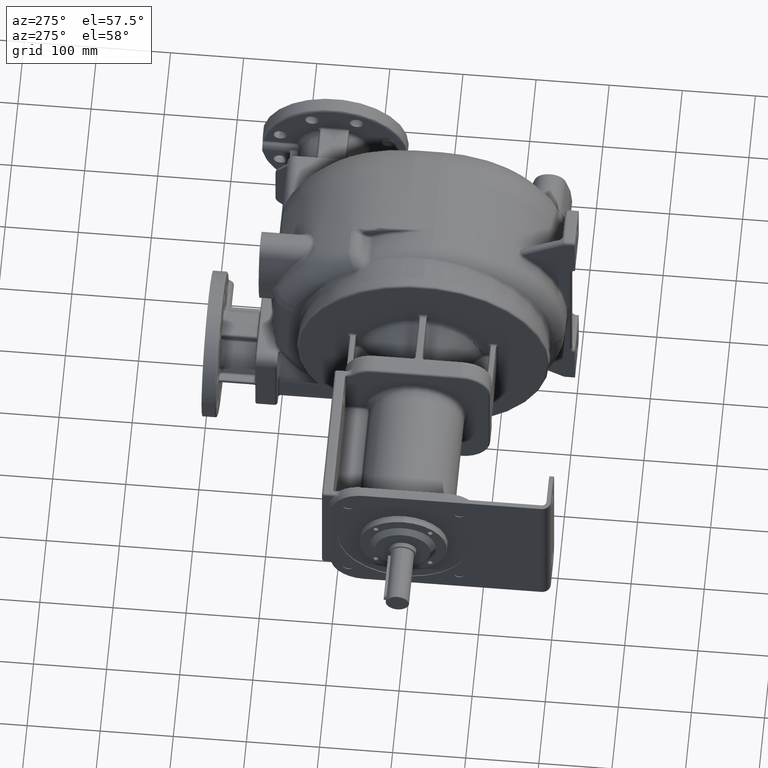
[diagram: clean part render]
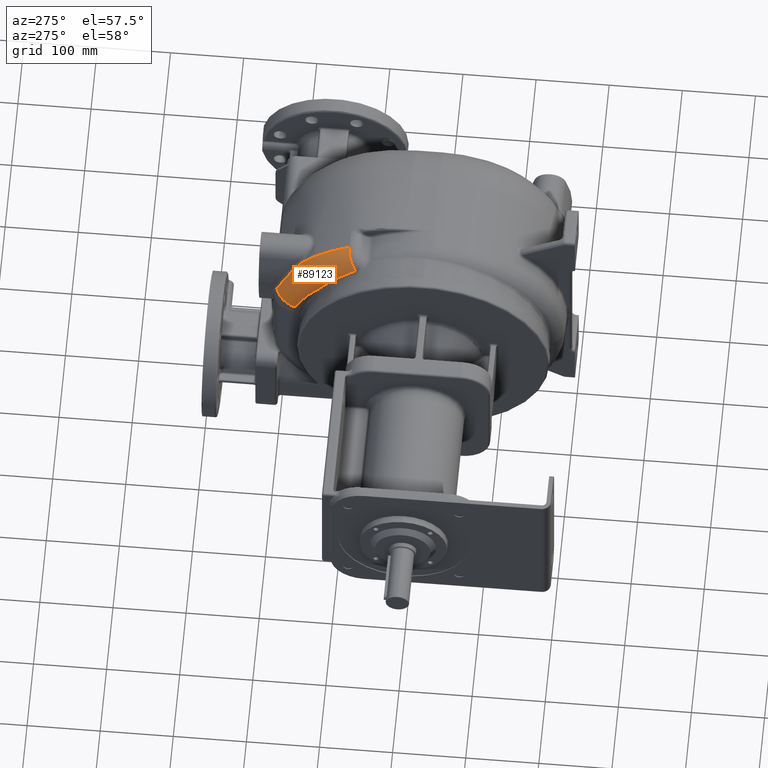
[diagram: same view with one face highlighted and labeled with its STEP entity id]
A machine part, auxiliary view. The second image highlights one B-rep face of the part: STEP entity #89123.
In plain terms, the highlighted toroidal blend (fillet) surface has major radius 159 mm and minor (blend) radius 30 mm.
Its self-contained STEP definition (entity closure, byte-faithful):
#5844=CARTESIAN_POINT('',(-9.E1,2.3E2,-1.4E1));
#5845=DIRECTION('',(1.E0,0.E0,0.E0));
#5846=DIRECTION('',(0.E0,9.302325581395E-1,3.669705543735E-1));
#5847=AXIS2_PLACEMENT_3D('',#5844,#5845,#5846);
#27433=CARTESIAN_POINT('',(-6.000000000030E1,3.064739922871E2,
1.588372994995E2));
#27553=CARTESIAN_POINT('',(-6.E1,2.3E2,-1.4E1));
#27554=DIRECTION('',(1.E0,0.E0,0.E0));
#27555=DIRECTION('',(0.E0,7.543088288629E-1,6.565197565188E-1));
#27556=AXIS2_PLACEMENT_3D('',#27553,#27554,#27555);
#27647=CARTESIAN_POINT('',(-6.000000000092E1,3.725643686570E2,
1.100822339799E2));
#27691=CARTESIAN_POINT('',(-8.762180806641E1,2.953950263797E2,
1.436835588430E2));
#27692=CARTESIAN_POINT('',(-8.769521069200E1,2.962566815015E2,
1.431386986206E2));
#27693=CARTESIAN_POINT('',(-8.783826740654E1,2.979707382224E2,
1.420334029943E2));
#27694=CARTESIAN_POINT('',(-8.804165784052E1,3.005132172466E2,
1.403293636467E2));
#27695=CARTESIAN_POINT('',(-8.823403341978E1,3.030261253060E2,
1.385797783569E2));
#27696=CARTESIAN_POINT('',(-8.841553721379E1,3.055085425872E2,
1.367852388306E2));
#27697=CARTESIAN_POINT('',(-8.858632965187E1,3.079595436378E2,
1.349463243219E2));
#27698=CARTESIAN_POINT('',(-8.874657425831E1,3.103781782659E2,
1.330636248693E2));
#27699=CARTESIAN_POINT('',(-8.889643116003E1,3.127636010498E2,
1.311376977988E2));
#27700=CARTESIAN_POINT('',(-8.903604457782E1,3.151152268230E2,
1.291690188950E2));
#27701=CARTESIAN_POINT('',(-8.916556542760E1,3.174324486465E2,
1.271580417057E2));
#27702=CARTESIAN_POINT('',(-8.928513878391E1,3.197145376129E2,
1.251053155930E2));
#27703=CARTESIAN_POINT('',(-8.939490426663E1,3.219605928680E2,
1.230115515701E2));
#27704=CARTESIAN_POINT('',(-8.949500969855E1,3.241697463077E2,
1.208774314408E2));
#27705=CARTESIAN_POINT('',(-8.958559527435E1,3.263411675304E2,
1.187036924313E2));
#27706=CARTESIAN_POINT('',(-8.966680054861E1,3.284740785590E2,
1.164910967877E2));
#27707=CARTESIAN_POINT('',(-8.973877270596E1,3.305676710447E2,
1.142404416515E2));
#27708=CARTESIAN_POINT('',(-8.980166984260E1,3.326213256288E2,
1.119523322082E2));
#27709=CARTESIAN_POINT('',(-8.985565365644E1,3.346344925975E2,
1.096272835849E2));
#27710=CARTESIAN_POINT('',(-8.990088632323E1,3.366066030567E2,
1.072657865778E2));
#27711=CARTESIAN_POINT('',(-8.993751777536E1,3.385369797466E2,
1.048686205661E2));
#27712=CARTESIAN_POINT('',(-8.996570499920E1,3.404249204609E2,
1.024366380478E2));
#27713=CARTESIAN_POINT('',(-8.998561386675E1,3.422697285616E2,
9.997067522997E1));
#27714=CARTESIAN_POINT('',(-8.999741737241E1,3.440707123145E2,
9.747156284861E1));
#27715=CARTESIAN_POINT('',(-8.999999933684E1,3.452416721930E2,
9.578396717172E1));
#27716=CARTESIAN_POINT('',(-9.E1,3.458196245508E2,9.493490978708E1));
#27718=CARTESIAN_POINT('',(-6.848899719603E1,3.985561303529E2,
6.875183301023E1));
#27719=CARTESIAN_POINT('',(-6.853901747705E1,3.989144509852E2,
6.798848855057E1));
#27720=CARTESIAN_POINT('',(-6.862805762042E1,3.996237838311E2,
6.645765986517E1));
#27721=CARTESIAN_POINT('',(-6.872825286512E1,4.006672378904E2,
6.414714727711E1));
#27722=CARTESIAN_POINT('',(-6.879437732745E1,4.016876764182E2,
6.182892305847E1));
#27723=CARTESIAN_POINT('',(-6.882617210173E1,4.026837039949E2,
5.950739165666E1));
#27724=CARTESIAN_POINT('',(-6.882354118378E1,4.036539467758E2,
5.718696504237E1));
#27725=CARTESIAN_POINT('',(-6.879901281948E1,4.042820973670E2,
5.564519128781E1));
#27726=CARTESIAN_POINT('',(-6.878109941011E1,4.045917202806E2,
5.487527190917E1));
#27728=CARTESIAN_POINT('',(-6.020937188435E1,3.730639181206E2,
1.095048143138E2));
#27729=CARTESIAN_POINT('',(-6.042734916796E1,3.735997205387E2,
1.088818299071E2));
#27730=CARTESIAN_POINT('',(-6.085961046254E1,3.746642093944E2,
1.076204649236E2));
#27731=CARTESIAN_POINT('',(-6.149505794326E1,3.762389293209E2,
1.056829750444E2));
#27732=CARTESIAN_POINT('',(-6.211606699730E1,3.777921258422E2,
1.036995232177E2));
#27733=CARTESIAN_POINT('',(-6.272098238917E1,3.793240553163E2,
1.016699286046E2));
#27734=CARTESIAN_POINT('',(-6.330822962464E1,3.808351104644E2,
9.959390064618E1));
#27735=CARTESIAN_POINT('',(-6.387613882432E1,3.823257794372E2,
9.747107533414E1));
#27736=CARTESIAN_POINT('',(-6.442290540256E1,3.837962026039E2,
9.530164394303E1));
#27737=CARTESIAN_POINT('',(-6.494663212439E1,3.852462042773E2,
9.308639423132E1));
#27738=CARTESIAN_POINT('',(-6.544537233829E1,3.866758139338E2,
9.082599760732E1));
#27739=CARTESIAN_POINT('',(-6.591720210572E1,3.880849494411E2,
8.852142501326E1));
#27740=CARTESIAN_POINT('',(-6.636024652314E1,3.894734062730E2,
8.617397881651E1));
#27741=CARTESIAN_POINT('',(-6.677260646944E1,3.908412067587E2,
8.378476127157E1));
#27742=CARTESIAN_POINT('',(-6.715230403044E1,3.921879834979E2,
8.135565686831E1));
#27743=CARTESIAN_POINT('',(-6.749729952928E1,3.935122068216E2,
7.889082664839E1));
#27744=CARTESIAN_POINT('',(-6.780571960205E1,3.948127086088E2,
7.639416437454E1));
#27745=CARTESIAN_POINT('',(-6.807582471839E1,3.960883283461E2,
7.386984603646E1));
#27746=CARTESIAN_POINT('',(-6.830631890247E1,3.973381439200E2,
7.132162337576E1));
#27747=CARTESIAN_POINT('',(-6.843272308295E1,3.981530183961E2,
6.961059712931E1));
#27748=CARTESIAN_POINT('',(-6.848899719603E1,3.985561303529E2,
6.875183301023E1));
#27750=CARTESIAN_POINT('',(-6.000000000092E1,3.725643686570E2,
1.100822339799E2));
#27751=CARTESIAN_POINT('',(-6.002395814809E1,3.726199111368E2,
1.100184184092E2));
#27752=CARTESIAN_POINT('',(-6.007141267335E1,3.727309695723E2,
1.098905572811E2));
#27753=CARTESIAN_POINT('',(-6.014120843348E1,3.728974910281E2,
1.096980723139E2));
#27754=CARTESIAN_POINT('',(-6.018680623015E1,3.730084501541E2,
1.095693075915E2));
#27755=CARTESIAN_POINT('',(-6.020937188435E1,3.730639181206E2,
1.095048143138E2));
#27757=CARTESIAN_POINT('',(-8.762180806641E1,2.953950263797E2,
1.436835588430E2));
#27758=CARTESIAN_POINT('',(-8.751501008340E1,2.955713421834E2,
1.438832507602E2));
#27759=CARTESIAN_POINT('',(-8.729445560558E1,2.959196061576E2,
1.442812803659E2));
#27760=CARTESIAN_POINT('',(-8.694325449924E1,2.964300201248E2,
1.448726220751E2));
#27761=CARTESIAN_POINT('',(-8.657169300084E1,2.969272672941E2,
1.454587633778E2));
#27762=CARTESIAN_POINT('',(-8.618020525827E1,2.974126335209E2,
1.460382417817E2));
#27763=CARTESIAN_POINT('',(-8.576883538819E1,2.978848520616E2,
1.466114993330E2));
#27764=CARTESIAN_POINT('',(-8.533800237094E1,2.983450947248E2,
1.471772267439E2));
#27765=CARTESIAN_POINT('',(-8.488781123121E1,2.987923615065E2,
1.477356321969E2));
#27766=CARTESIAN_POINT('',(-8.441864109036E1,2.992274130725E2,
1.482857080357E2));
#27767=CARTESIAN_POINT('',(-8.393068981925E1,2.996496951806E2,
1.488273276210E2));
#27768=CARTESIAN_POINT('',(-8.342427496082E1,3.000594916752E2,
1.493598262562E2));
#27769=CARTESIAN_POINT('',(-8.289966984166E1,3.004567173673E2,
1.498827814144E2));
#27770=CARTESIAN_POINT('',(-8.235716720702E1,3.008412312495E2,
1.503957752102E2));
#27771=CARTESIAN_POINT('',(-8.179710864598E1,3.012132655837E2,
1.508981851285E2));
#27772=CARTESIAN_POINT('',(-8.121978976427E1,3.015724735627E2,
1.513897074653E2));
#27773=CARTESIAN_POINT('',(-8.062558554533E1,3.019191839819E2,
1.518696706204E2));
#27774=CARTESIAN_POINT('',(-8.001483063513E1,3.022530443504E2,
1.523377593075E2));
#27775=CARTESIAN_POINT('',(-7.938792696931E1,3.025743217962E2,
1.527933367185E2));
#27776=CARTESIAN_POINT('',(-7.874526712255E1,3.028827622707E2,
1.532360224827E2));
#27777=CARTESIAN_POINT('',(-7.808728824604E1,3.031785172557E2,
1.536652393903E2));
#27778=CARTESIAN_POINT('',(-7.741442492827E1,3.034614581182E2,
1.540805566870E2));
#27779=CARTESIAN_POINT('',(-7.672714362187E1,3.037316424552E2,
1.544814578477E2));
#27780=CARTESIAN_POINT('',(-7.602590820891E1,3.039890374262E2,
1.548674894919E2));
#27781=CARTESIAN_POINT('',(-7.531121542888E1,3.042336491251E2,
1.552381784182E2));
#27782=CARTESIAN_POINT('',(-7.458358598402E1,3.044654848597E2,
1.555930581245E2));
#27783=CARTESIAN_POINT('',(-7.384357825842E1,3.046845345954E2,
1.559316716917E2));
#27784=CARTESIAN_POINT('',(-7.309175920936E1,3.048908171945E2,
1.562535714297E2));
#27785=CARTESIAN_POINT('',(-7.232873801772E1,3.050843346337E2,
1.565583217200E2));
#27786=CARTESIAN_POINT('',(-7.155512719502E1,3.052651039480E2,
1.568455080891E2));
#27787=CARTESIAN_POINT('',(-7.077157890034E1,3.054331565399E2,
1.571147205282E2));
#27788=CARTESIAN_POINT('',(-6.997873920759E1,3.055885035418E2,
1.573655913680E2));
#27789=CARTESIAN_POINT('',(-6.917728459131E1,3.057311813023E2,
1.575977587949E2));
#27790=CARTESIAN_POINT('',(-6.836792032939E1,3.058612123124E2,
1.578108883089E2));
#27791=CARTESIAN_POINT('',(-6.755136647380E1,3.059786752335E2,
1.580046496513E2));
#27792=CARTESIAN_POINT('',(-6.672825454060E1,3.060835884848E2,
1.581787946832E2));
#27793=CARTESIAN_POINT('',(-6.589922661402E1,3.061759431625E2,
1.583331018833E2));
#27794=CARTESIAN_POINT('',(-6.506521629760E1,3.062558010921E2,
1.584672832595E2));
#27795=CARTESIAN_POINT('',(-6.422713648259E1,3.063233635958E2,
1.585810565483E2));
#27796=CARTESIAN_POINT('',(-6.338510713477E1,3.063786248533E2,
1.586743854193E2));
#27797=CARTESIAN_POINT('',(-6.253926283586E1,3.064212772008E2,
1.587472933474E2));
#27798=CARTESIAN_POINT('',(-6.169168652090E1,3.064515317377E2,
1.587994167969E2));
#27799=CARTESIAN_POINT('',(-6.084426085287E1,3.064700369871E2,
1.588303991540E2));
#27800=CARTESIAN_POINT('',(-6.028111401707E1,3.064740716521E2,
1.588372596089E2));
#27801=CARTESIAN_POINT('',(-6.000000000030E1,3.064739922871E2,
1.588372994995E2));
#39659=CARTESIAN_POINT('',(-6.E1,3.779069767442E2,4.434831814538E1));
#39660=DIRECTION('',(0.E0,3.669705543735E-1,-9.302325581395E-1));
#39661=DIRECTION('',(-1.E0,0.E0,0.E0));
#39662=AXIS2_PLACEMENT_3D('',#39659,#39660,#39661);
#44070=CARTESIAN_POINT('',(-9.E1,3.458196245197E2,9.493490983270E1));
#44071=VERTEX_POINT('',#44070);
#44594=CARTESIAN_POINT('',(-9.E1,3.779069767442E2,4.434831814538E1));
#44596=VERTEX_POINT('',#44594);
#44615=VERTEX_POINT('',#27647);
#44617=VERTEX_POINT('',#27755);
#44619=VERTEX_POINT('',#27748);
#44621=VERTEX_POINT('',#27726);
#44653=VERTEX_POINT('',#27691);
#45348=VERTEX_POINT('',#27433);
#89102=CARTESIAN_POINT('',(-6.E1,2.3E2,-1.4E1));
#89103=DIRECTION('',(1.E0,0.E0,0.E0));
#89104=DIRECTION('',(0.E0,-5.701592278795E-3,9.999837457906E-1));
#89105=AXIS2_PLACEMENT_3D('',#89102,#89103,#89104);
#89106=TOROIDAL_SURFACE('',#89105,1.59E2,3.E1);
#89108=ORIENTED_EDGE('',*,*,#89107,.T.);
#89109=ORIENTED_EDGE('',*,*,#54255,.F.);
#89111=ORIENTED_EDGE('',*,*,#89110,.T.);
#89113=ORIENTED_EDGE('',*,*,#89112,.F.);
#89115=ORIENTED_EDGE('',*,*,#89114,.F.);
#89117=ORIENTED_EDGE('',*,*,#89116,.F.);
#89118=ORIENTED_EDGE('',*,*,#89086,.T.);
#89120=ORIENTED_EDGE('',*,*,#89119,.F.);
#89121=EDGE_LOOP('',(#89108,#89109,#89111,#89113,#89115,#89117,#89118,#89120));
#89122=FACE_OUTER_BOUND('',#89121,.F.);
#89123=ADVANCED_FACE('',(#89122),#89106,.T.);
#5848=CIRCLE('',#5847,1.59E2);
#27557=CIRCLE('',#27556,1.89E2);
#27717=B_SPLINE_CURVE_WITH_KNOTS('',3,(#27691,#27692,#27693,#27694,#27695,
#27696,#27697,#27698,#27699,#27700,#27701,#27702,#27703,#27704,#27705,#27706,
#27707,#27708,#27709,#27710,#27711,#27712,#27713,#27714,#27715,#27716),
.UNSPECIFIED.,.F.,.F.,(4,1,1,1,1,1,1,1,1,1,1,1,1,1,1,1,1,1,1,1,1,1,1,4),(0.E0,
4.347826086957E-2,8.695652173913E-2,1.304347826087E-1,1.739130434783E-1,
2.173913043478E-1,2.608695652174E-1,3.043478260870E-1,3.478260869565E-1,
3.913043478261E-1,4.347826086957E-1,4.782608695652E-1,5.217391304348E-1,
5.652173913043E-1,6.086956521739E-1,6.521739130435E-1,6.956521739130E-1,
7.391304347826E-1,7.826086956522E-1,8.260869565217E-1,8.695652173913E-1,
9.130434782609E-1,9.565217391304E-1,1.E0),.UNSPECIFIED.);
#27727=B_SPLINE_CURVE_WITH_KNOTS('',3,(#27718,#27719,#27720,#27721,#27722,
#27723,#27724,#27725,#27726),.UNSPECIFIED.,.F.,.F.,(4,1,1,1,1,1,4),(0.E0,
1.666666666667E-1,3.333333333333E-1,5.E-1,6.666666666667E-1,8.333333333333E-1,
1.E0),.UNSPECIFIED.);
#27749=B_SPLINE_CURVE_WITH_KNOTS('',3,(#27728,#27729,#27730,#27731,#27732,
#27733,#27734,#27735,#27736,#27737,#27738,#27739,#27740,#27741,#27742,#27743,
#27744,#27745,#27746,#27747,#27748),.UNSPECIFIED.,.F.,.F.,(4,1,1,1,1,1,1,1,1,1,
1,1,1,1,1,1,1,1,4),(0.E0,5.555555555556E-2,1.111111111111E-1,1.666666666667E-1,
2.222222222222E-1,2.777777777778E-1,3.333333333333E-1,3.888888888889E-1,
4.444444444444E-1,5.E-1,5.555555555556E-1,6.111111111111E-1,6.666666666667E-1,
7.222222222222E-1,7.777777777778E-1,8.333333333333E-1,8.888888888889E-1,
9.444444444444E-1,1.E0),.UNSPECIFIED.);
#27756=B_SPLINE_CURVE_WITH_KNOTS('',3,(#27750,#27751,#27752,#27753,#27754,
#27755),.UNSPECIFIED.,.F.,.F.,(4,1,1,4),(0.E0,3.333333333333E-1,
6.666666666667E-1,1.E0),.UNSPECIFIED.);
#27802=B_SPLINE_CURVE_WITH_KNOTS('',3,(#27757,#27758,#27759,#27760,#27761,
#27762,#27763,#27764,#27765,#27766,#27767,#27768,#27769,#27770,#27771,#27772,
#27773,#27774,#27775,#27776,#27777,#27778,#27779,#27780,#27781,#27782,#27783,
#27784,#27785,#27786,#27787,#27788,#27789,#27790,#27791,#27792,#27793,#27794,
#27795,#27796,#27797,#27798,#27799,#27800,#27801),.UNSPECIFIED.,.F.,.F.,(4,1,1,
1,1,1,1,1,1,1,1,1,1,1,1,1,1,1,1,1,1,1,1,1,1,1,1,1,1,1,1,1,1,1,1,1,1,1,1,1,1,1,
4),(0.E0,2.380952380952E-2,4.761904761905E-2,7.142857142857E-2,
9.523809523810E-2,1.190476190476E-1,1.428571428571E-1,1.666666666667E-1,
1.904761904762E-1,2.142857142857E-1,2.380952380952E-1,2.619047619048E-1,
2.857142857143E-1,3.095238095238E-1,3.333333333333E-1,3.571428571429E-1,
3.809523809524E-1,4.047619047619E-1,4.285714285714E-1,4.523809523810E-1,
4.761904761905E-1,5.E-1,5.238095238095E-1,5.476190476190E-1,5.714285714286E-1,
5.952380952381E-1,6.190476190476E-1,6.428571428571E-1,6.666666666667E-1,
6.904761904762E-1,7.142857142857E-1,7.380952380952E-1,7.619047619048E-1,
7.857142857143E-1,8.095238095238E-1,8.333333333333E-1,8.571428571429E-1,
8.809523809524E-1,9.047619047619E-1,9.285714285714E-1,9.523809523810E-1,
9.761904761905E-1,1.E0),.UNSPECIFIED.);
#39663=CIRCLE('',#39662,3.E1);
#54255=EDGE_CURVE('',#44596,#44071,#5848,.T.);
#89086=EDGE_CURVE('',#44615,#45348,#27557,.T.);
#89107=EDGE_CURVE('',#44653,#44071,#27717,.T.);
#89110=EDGE_CURVE('',#44596,#44621,#39663,.T.);
#89112=EDGE_CURVE('',#44619,#44621,#27727,.T.);
#89114=EDGE_CURVE('',#44617,#44619,#27749,.T.);
#89116=EDGE_CURVE('',#44615,#44617,#27756,.T.);
#89119=EDGE_CURVE('',#44653,#45348,#27802,.T.);